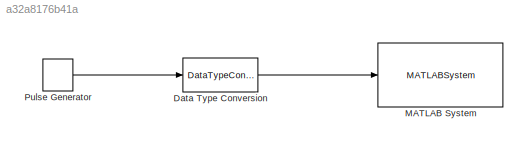
MODEL slx_a32a8176b41a
KIND model
CONFIG AbsTol = auto
CONFIG FixedStep = auto
CONFIG MaxStep = auto
CONFIG MinStep = auto
CONFIG RelTol = 1e-3
CONFIG SampleTimeConstraint = Unconstrained
CONFIG Solver = ode45
CONFIG SolverMode = Auto
CONFIG SolverName = ode45
CONFIG StartTime = 0.0
CONFIG StopTime = 10.0
BLOCK [DataTypeConversion] Data Type Conversion
  OutDataTypeStr = boolean
  RndMeth = Floor
  SaturateOnIntegerOverflow = off
BLOCK [MATLABSystem] MATLAB System
  MaskDisplay = disp('Digital Write');\nport_label('input',1,'u');
  MaskType = DigitalWrite_arduino
  Pin = 3
  Ports = [1]
  System = DigitalWrite_arduino
BLOCK [DiscretePulseGenerator] Pulse Generator
  Period = 10
  Ports = [0, 1]
  PulseWidth = 5
  SampleTime = 0.1
LINE Data Type Conversion:1 -> MATLAB System:1
LINE Pulse Generator:1 -> Data Type Conversion:1
